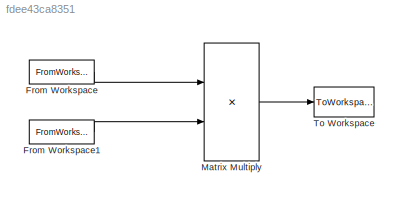
MODEL slx_fdee43ca8351
KIND model
CONFIG AbsTol = auto
CONFIG FixedStep = auto
CONFIG MaxStep = auto
CONFIG MinStep = auto
CONFIG RelTol = 1e-3
CONFIG SampleTimeConstraint = Unconstrained
CONFIG Solver = ode45
CONFIG SolverMode = Auto
CONFIG SolverName = ode45
CONFIG StartTime = 0.0
CONFIG StopTime = 10.0
BLOCK [FromWorkspace] From Workspace
  SampleTime = 0.01
  VariableName = [A1]
  ZeroCross = on
BLOCK [FromWorkspace] From Workspace1
  SampleTime = 0.01
  VariableName = [A2]
  ZeroCross = on
BLOCK [Product] Matrix Multiply
  Inputs = **
  LockScale = on
  Multiplication = Matrix(*)
  Ports = [2, 1]
  RndMeth = Floor
  SaturateOnIntegerOverflow = off
BLOCK [ToWorkspace] To Workspace
  MaxDataPoints = inf
  Ports = [1]
  SampleTime = -1
  SaveFormat = Structure
  VariableName = A3
LINE From Workspace1:1 -> Matrix Multiply:2
LINE From Workspace:1 -> Matrix Multiply:1
LINE Matrix Multiply:1 -> To Workspace:1
